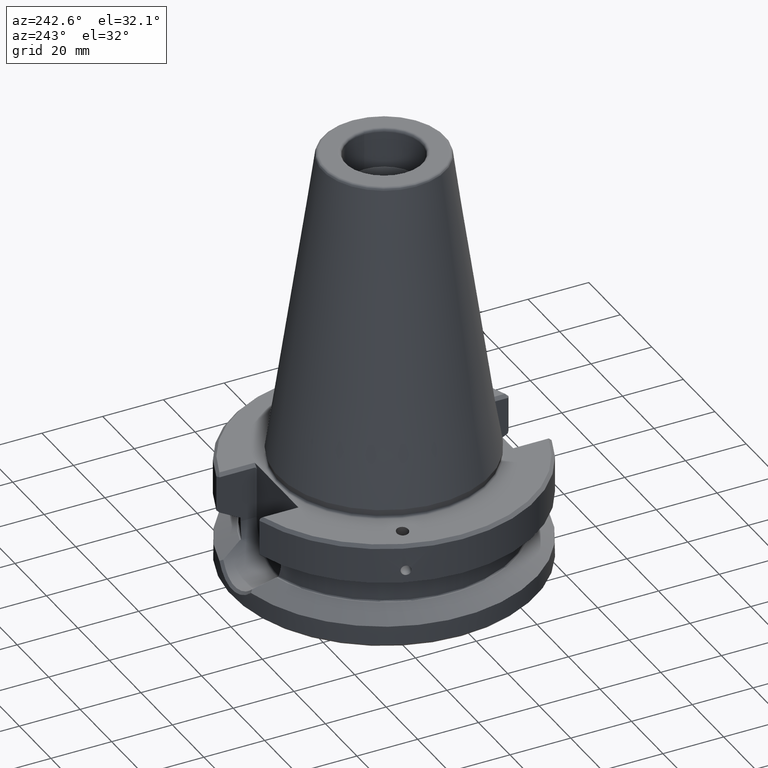
[diagram: clean part render]
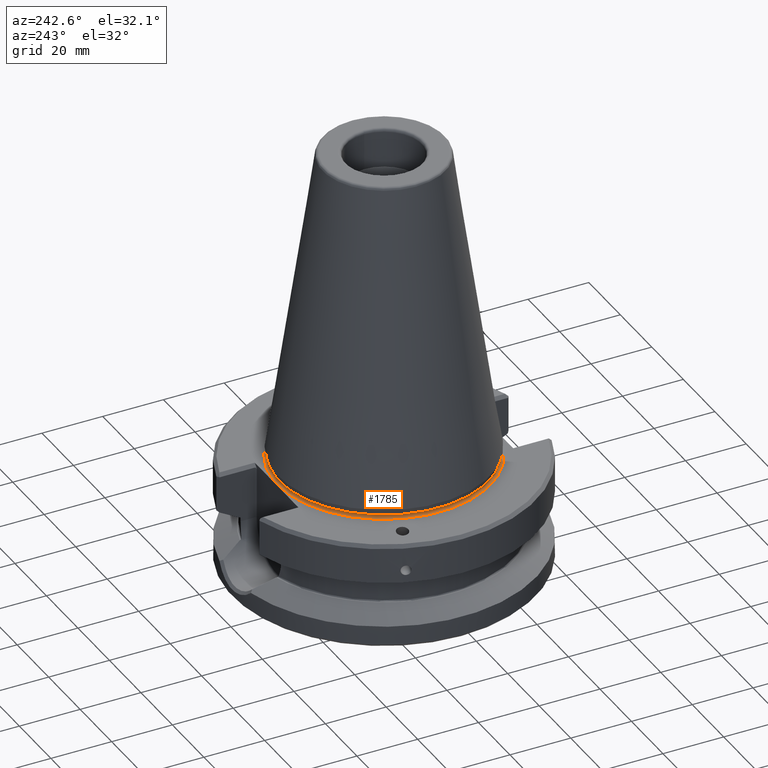
[diagram: same view with one face highlighted and labeled with its STEP entity id]
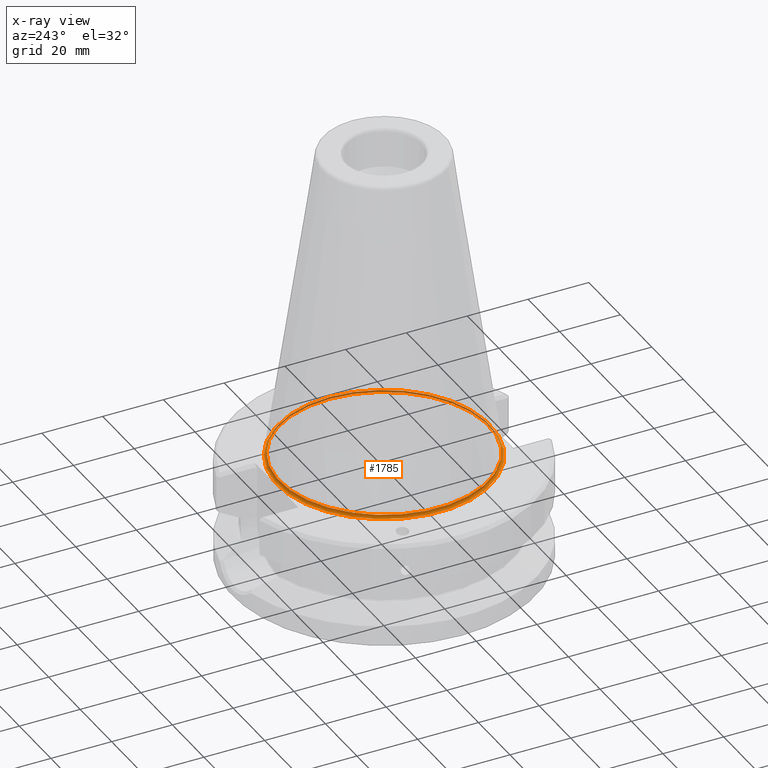
[diagram: x-ray of the same camera — body ghosted, the highlighted face saturated]
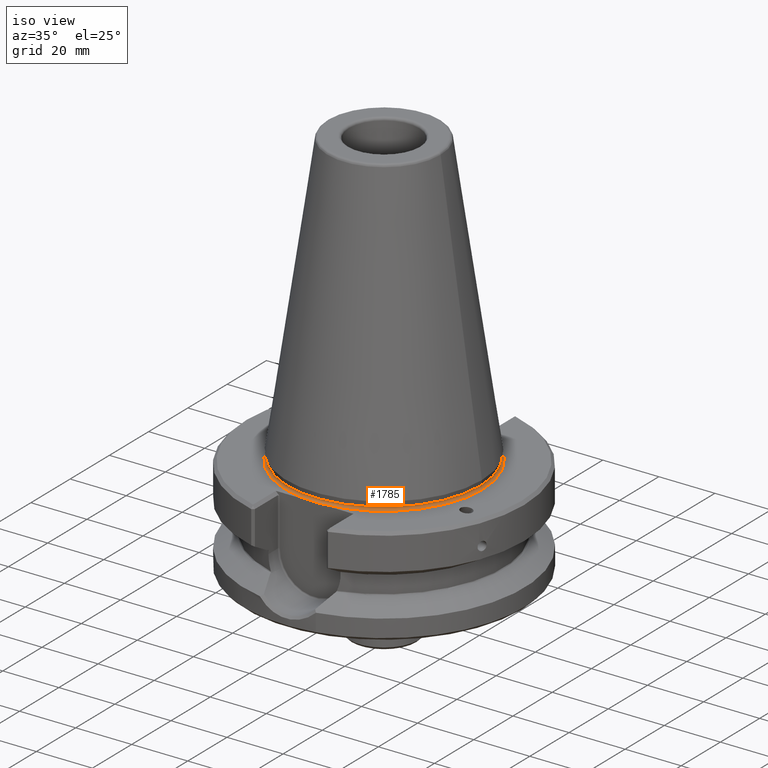
[diagram: same view with one face highlighted and labeled with its STEP entity id]
A machine part, auxiliary view. The second image highlights one B-rep face of the part: STEP entity #1785.
The next image is the same camera in x-ray: the body ghosted, the highlighted face saturated — about 24% of this face is hidden behind the body in this view.
A second angle (iso view) of the same face is appended — the face is thin or edge-on in the first view.
In plain terms, the highlighted toroidal blend (fillet) surface has major radius 35.1637 mm and minor (blend) radius 0.8 mm.
Its self-contained STEP definition (entity closure, byte-faithful):
#28=TOROIDAL_SURFACE('',#1895,35.1637327209796,0.8);
#305=ORIENTED_EDGE('',*,*,#590,.T.);
#306=ORIENTED_EDGE('',*,*,#578,.F.);
#578=EDGE_CURVE('',#743,#743,#860,.T.);
#590=EDGE_CURVE('',#755,#755,#864,.T.);
#743=VERTEX_POINT('',#2434);
#755=VERTEX_POINT('',#2459);
#860=CIRCLE('',#1865,34.3909920599484);
#864=CIRCLE('',#1872,35.1637327209796);
#937=EDGE_LOOP('',(#305));
#938=EDGE_LOOP('',(#306));
#1063=FACE_BOUND('',#937,.T.);
#1064=FACE_BOUND('',#938,.T.);
#1785=ADVANCED_FACE('',(#1063,#1064),#28,.F.);
#1865=AXIS2_PLACEMENT_3D('',#2433,#2019,#2020);
#1872=AXIS2_PLACEMENT_3D('',#2458,#2039,#2040);
#1895=AXIS2_PLACEMENT_3D('',#2570,#2097,#2098);
#2019=DIRECTION('',(-1.25488262000243E-16,0.,1.));
#2020=DIRECTION('',(1.,0.,1.25488262000243E-16));
#2039=DIRECTION('',(-1.25488262000243E-16,0.,1.));
#2040=DIRECTION('',(1.,0.,1.25488262000243E-16));
#2097=DIRECTION('',(-1.25488262000243E-16,0.,1.));
#2098=DIRECTION('',(1.,0.,1.25488262000243E-16));
#2433=CARTESIAN_POINT('',(-4.51846278132266E-15,0.,-1.99294476391799));
#2434=CARTESIAN_POINT('',(34.3909920599484,0.,-1.99294476391799));
#2458=CARTESIAN_POINT('',(-4.39208917000849E-15,0.,-3.00000000000001));
#2459=CARTESIAN_POINT('',(35.1637327209796,0.,-3.00000000000001));
#2570=CARTESIAN_POINT('',(-6.93889390390723E-15,0.,-2.20000000000001));